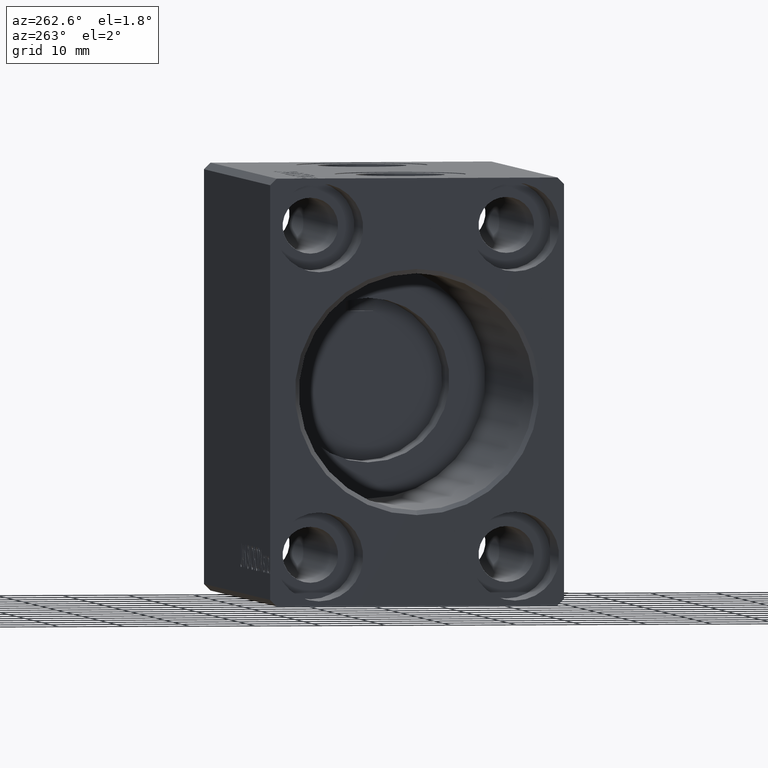
[diagram: clean part render]
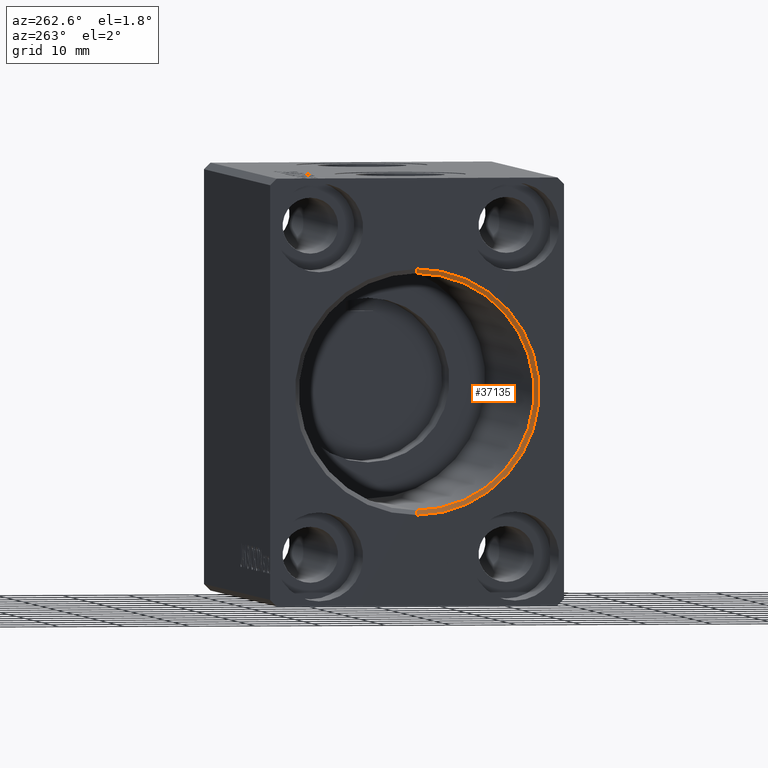
[diagram: same view with one face highlighted and labeled with its STEP entity id]
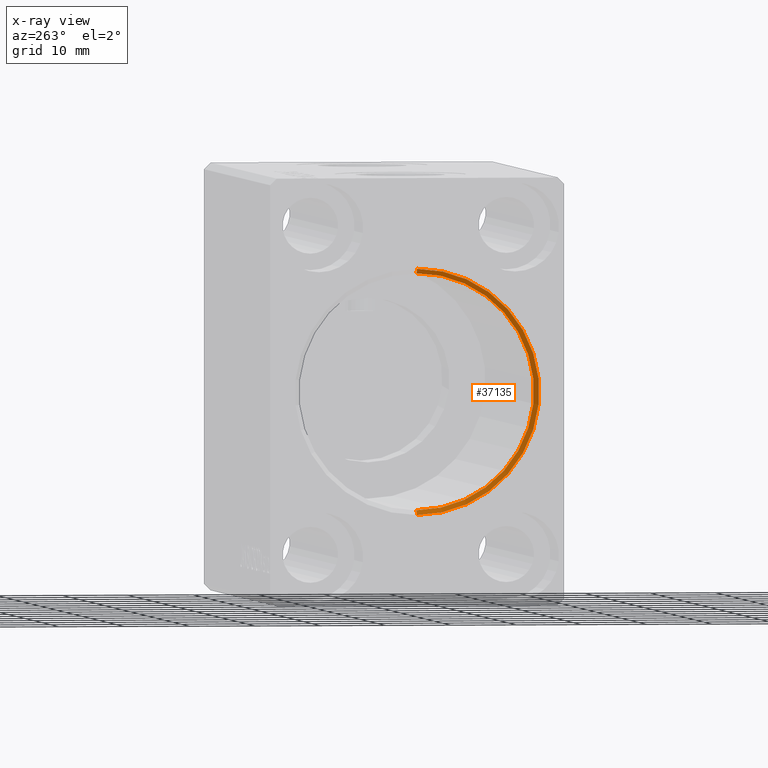
[diagram: x-ray of the same camera — body ghosted, the highlighted face saturated]
A machine part, auxiliary view. The second image highlights one B-rep face of the part: STEP entity #37135.
The next image is the same camera in x-ray: the body ghosted, the highlighted face saturated — about 0% of this face is hidden behind the body in this view.
In plain terms, the highlighted conical surface has half-angle 45 deg.
Its self-contained STEP definition (entity closure, byte-faithful):
#1386 = AXIS2_PLACEMENT_3D ( 'NONE', #28657, #24586, #2471 ) ;
#2471 = DIRECTION ( 'NONE',  ( 0.000000000000000000, 0.000000000000000000, 1.000000000000000000 ) ) ;
#5122 = EDGE_CURVE ( 'NONE', #35474, #36451, #35090, .T. ) ;
#5517 = CARTESIAN_POINT ( 'NONE',  ( 0.7000000000000963229, 0.000000000000000000, 18.00000000000000000 ) ) ;
#5555 = ORIENTED_EDGE ( 'NONE', *, *, #25786, .F. ) ;
#6738 = CIRCLE ( 'NONE', #12941, 18.70000000000008811 ) ;
#9005 = VECTOR ( 'NONE', #16015, 999.9999999999998863 ) ;
#12941 = AXIS2_PLACEMENT_3D ( 'NONE', #40542, #30882, #33252 ) ;
#14938 = DIRECTION ( 'NONE',  ( -0.7071067811865510144, 8.659560562354890950E-17, -0.7071067811865441310 ) ) ;
#16015 = DIRECTION ( 'NONE',  ( -0.7071067811865510144, 0.000000000000000000, 0.7071067811865441310 ) ) ;
#16068 = EDGE_CURVE ( 'NONE', #35474, #28291, #37515, .T. ) ;
#16166 = ORIENTED_EDGE ( 'NONE', *, *, #16068, .F. ) ;
#19652 = CARTESIAN_POINT ( 'NONE',  ( 0.000000000000000000, 0.000000000000000000, 18.70000000000008811 ) ) ;
#19883 = CONICAL_SURFACE ( 'NONE', #1386, 18.00000000000000000, 0.7853981633974433940 ) ;
#24127 = VERTEX_POINT ( 'NONE', #19652 ) ;
#24581 = CARTESIAN_POINT ( 'NONE',  ( 0.7000000000000963229, 0.000000000000000000, 0.000000000000000000 ) ) ;
#24586 = DIRECTION ( 'NONE',  ( -1.000000000000000000, 0.000000000000000000, 0.000000000000000000 ) ) ;
#25227 = DIRECTION ( 'NONE',  ( 0.000000000000000000, 0.000000000000000000, -1.000000000000000000 ) ) ;
#25786 = EDGE_CURVE ( 'NONE', #24127, #36451, #6738, .T. ) ;
#26538 = AXIS2_PLACEMENT_3D ( 'NONE', #24581, #31242, #25227 ) ;
#26964 = ORIENTED_EDGE ( 'NONE', *, *, #38859, .F. ) ;
#27804 = FACE_OUTER_BOUND ( 'NONE', #37063, .T. ) ;
#28291 = VERTEX_POINT ( 'NONE', #34040 ) ;
#28657 = CARTESIAN_POINT ( 'NONE',  ( 0.7000000000000963229, 0.000000000000000000, 0.000000000000000000 ) ) ;
#30882 = DIRECTION ( 'NONE',  ( 1.000000000000000000, 0.000000000000000000, 0.000000000000000000 ) ) ;
#31242 = DIRECTION ( 'NONE',  ( -1.000000000000000000, 0.000000000000000000, 0.000000000000000000 ) ) ;
#32117 = LINE ( 'NONE', #5517, #9005 ) ;
#32650 = CARTESIAN_POINT ( 'NONE',  ( 0.000000000000000000, 2.290089514405561154E-15, -18.70000000000008811 ) ) ;
#33252 = DIRECTION ( 'NONE',  ( 0.000000000000000000, 0.000000000000000000, -1.000000000000000000 ) ) ;
#34040 = CARTESIAN_POINT ( 'NONE',  ( 0.7000000000000963229, 0.000000000000000000, 18.00000000000000000 ) ) ;
#35090 = LINE ( 'NONE', #37892, #35219 ) ;
#35219 = VECTOR ( 'NONE', #14938, 999.9999999999998863 ) ;
#35474 = VERTEX_POINT ( 'NONE', #38602 ) ;
#36451 = VERTEX_POINT ( 'NONE', #32650 ) ;
#37063 = EDGE_LOOP ( 'NONE', ( #16166, #40977, #5555, #26964 ) ) ;
#37135 = ADVANCED_FACE ( 'NONE', ( #27804 ), #19883, .F. ) ;
#37515 = CIRCLE ( 'NONE', #26538, 18.00000000000000000 ) ;
#37892 = CARTESIAN_POINT ( 'NONE',  ( 0.7000000000000963229, 2.204364238465235428E-15, -18.00000000000000000 ) ) ;
#38602 = CARTESIAN_POINT ( 'NONE',  ( 0.7000000000000963229, 2.204364238465235033E-15, -18.00000000000000000 ) ) ;
#38859 = EDGE_CURVE ( 'NONE', #28291, #24127, #32117, .T. ) ;
#40542 = CARTESIAN_POINT ( 'NONE',  ( 0.000000000000000000, 0.000000000000000000, 0.000000000000000000 ) ) ;
#40977 = ORIENTED_EDGE ( 'NONE', *, *, #5122, .T. ) ;